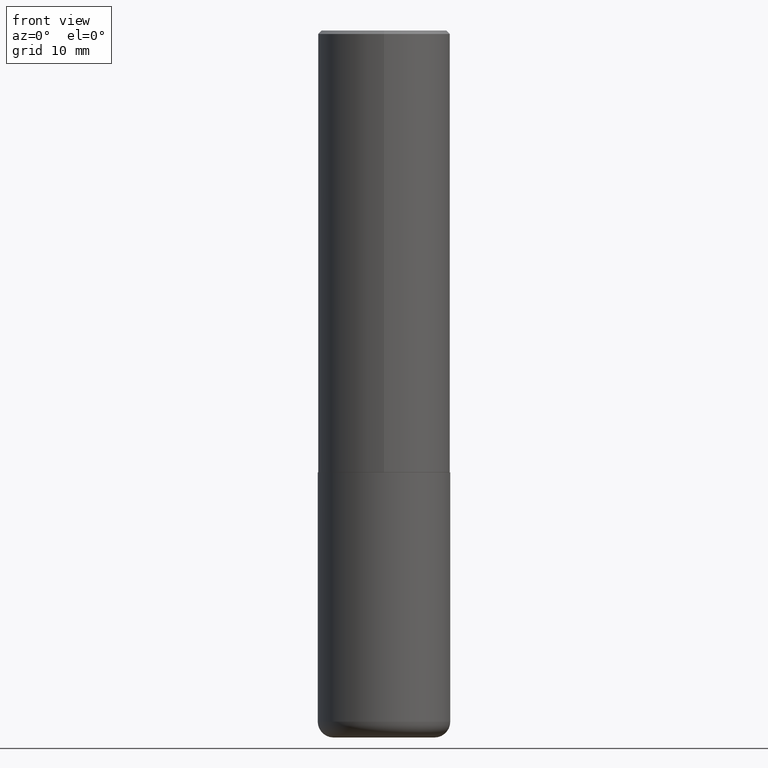
[diagram: clean part render]
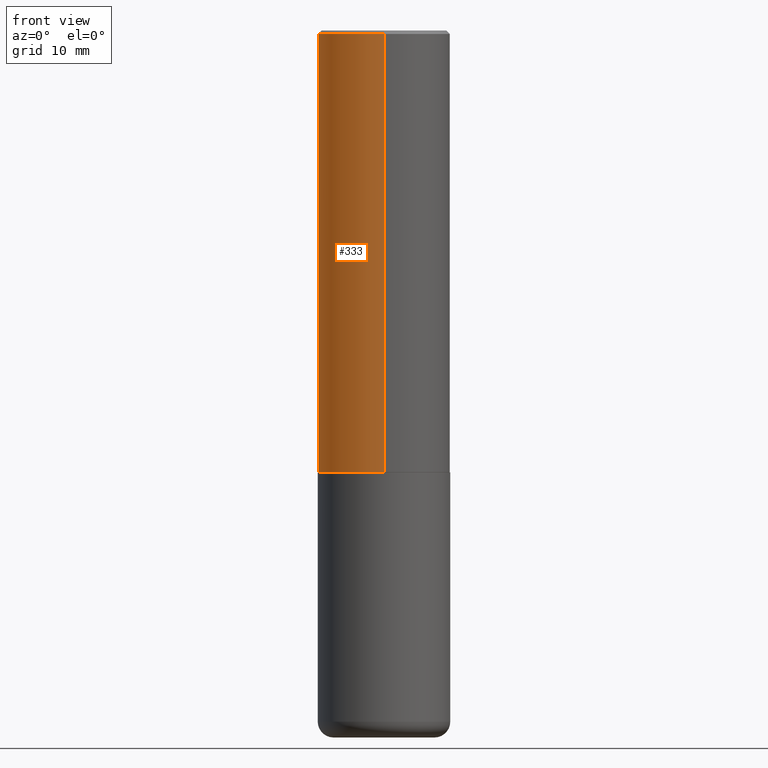
[diagram: same view with one face highlighted and labeled with its STEP entity id]
A machine part, front view. The second image highlights one B-rep face of the part: STEP entity #333.
In plain terms, the highlighted cylindrical surface (partial cylindrical patch) has radius 9.525 mm, axis along (-0, 0, 1).
Its self-contained STEP definition (entity closure, byte-faithful):
#13 = EDGE_CURVE ( 'NONE', #327, #174, #374, .T. ) ;
#26 = DIRECTION ( 'NONE',  ( -6.982962677686266711E-15, -1.000000000000000000, 3.492918657822378473E-15 ) ) ;
#36 = AXIS2_PLACEMENT_3D ( 'NONE', #98, #159, #282 ) ;
#40 = CARTESIAN_POINT ( 'NONE',  ( 6.108718364134156127E-29, -8.728803725898123939E-15, -2.498999999999999666 ) ) ;
#51 = CARTESIAN_POINT ( 'NONE',  ( 0.000000000000000000, 0.000000000000000000, 0.000000000000000000 ) ) ;
#52 = CYLINDRICAL_SURFACE ( 'NONE', #217, 0.3750000000000001665 ) ;
#65 = DIRECTION ( 'NONE',  ( -6.982962677686266711E-15, -1.000000000000000000, 2.913971193241878794E-15 ) ) ;
#72 = EDGE_CURVE ( 'NONE', #139, #213, #211, .T. ) ;
#83 = CARTESIAN_POINT ( 'NONE',  ( 2.664535259100376486E-15, 0.3750000000000001665, -1.309844496683392470E-15 ) ) ;
#96 = ORIENTED_EDGE ( 'NONE', *, *, #72, .F. ) ;
#98 = CARTESIAN_POINT ( 'NONE',  ( 4.888930263412711914E-31, -6.985837315644786578E-17, -0.02000000000000008715 ) ) ;
#100 = ORIENTED_EDGE ( 'NONE', *, *, #160, .T. ) ;
#111 = FACE_OUTER_BOUND ( 'NONE', #338, .T. ) ;
#139 = VERTEX_POINT ( 'NONE', #193 ) ;
#156 = DIRECTION ( 'NONE',  ( -2.444465131706345255E-29, 3.492918657822378473E-15, 1.000000000000000000 ) ) ;
#159 = DIRECTION ( 'NONE',  ( -2.444465131706345255E-29, 3.492918657822378473E-15, 1.000000000000000000 ) ) ;
#160 = EDGE_CURVE ( 'NONE', #174, #213, #391, .T. ) ;
#166 = VECTOR ( 'NONE', #203, 39.37007874015748143 ) ;
#170 = CARTESIAN_POINT ( 'NONE',  ( -2.618611004132351200E-15, -0.3750000000000001665, 1.309844496683392470E-15 ) ) ;
#174 = VERTEX_POINT ( 'NONE', #200 ) ;
#193 = CARTESIAN_POINT ( 'NONE',  ( 2.618611004132350411E-15, 0.3749999999999999445, -0.02000000000000139513 ) ) ;
#200 = CARTESIAN_POINT ( 'NONE',  ( -2.618611004132290852E-15, -0.3750000000000090483, -2.498999999999998778 ) ) ;
#203 = DIRECTION ( 'NONE',  ( -2.444465131706345255E-29, 3.492918657822378868E-15, 1.000000000000000000 ) ) ;
#211 = CIRCLE ( 'NONE', #36, 0.3750000000000000555 ) ;
#213 = VERTEX_POINT ( 'NONE', #399 ) ;
#217 = AXIS2_PLACEMENT_3D ( 'NONE', #51, #410, #26 ) ;
#236 = ORIENTED_EDGE ( 'NONE', *, *, #350, .F. ) ;
#241 = ORIENTED_EDGE ( 'NONE', *, *, #13, .T. ) ;
#246 = CARTESIAN_POINT ( 'NONE',  ( 2.664535259100408040E-15, 0.3749999999999915623, -2.499000000000000998 ) ) ;
#266 = VECTOR ( 'NONE', #366, 39.37007874015748143 ) ;
#282 = DIRECTION ( 'NONE',  ( -6.982962677686265922E-15, -1.000000000000000000, 3.494488891895536035E-15 ) ) ;
#327 = VERTEX_POINT ( 'NONE', #246 ) ;
#333 = ADVANCED_FACE ( 'NONE', ( #111 ), #52, .T. ) ;
#336 = AXIS2_PLACEMENT_3D ( 'NONE', #40, #156, #65 ) ;
#338 = EDGE_LOOP ( 'NONE', ( #236, #241, #100, #96 ) ) ;
#350 = EDGE_CURVE ( 'NONE', #327, #139, #407, .T. ) ;
#366 = DIRECTION ( 'NONE',  ( -2.444465131706345255E-29, 3.492918657822378868E-15, 1.000000000000000000 ) ) ;
#374 = CIRCLE ( 'NONE', #336, 0.3750000000000002776 ) ;
#391 = LINE ( 'NONE', #170, #166 ) ;
#399 = CARTESIAN_POINT ( 'NONE',  ( -2.572686749164323547E-15, -0.3750000000000001110, -0.01999999999999877570 ) ) ;
#407 = LINE ( 'NONE', #83, #266 ) ;
#410 = DIRECTION ( 'NONE',  ( -2.444465131706345255E-29, 3.492918657822378473E-15, 1.000000000000000000 ) ) ;